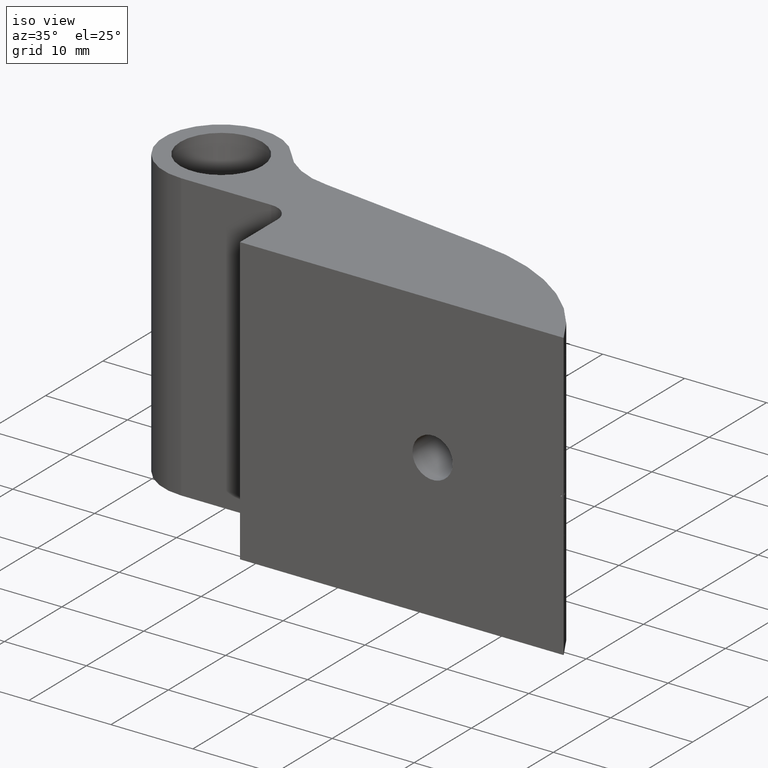
[diagram: clean part render]
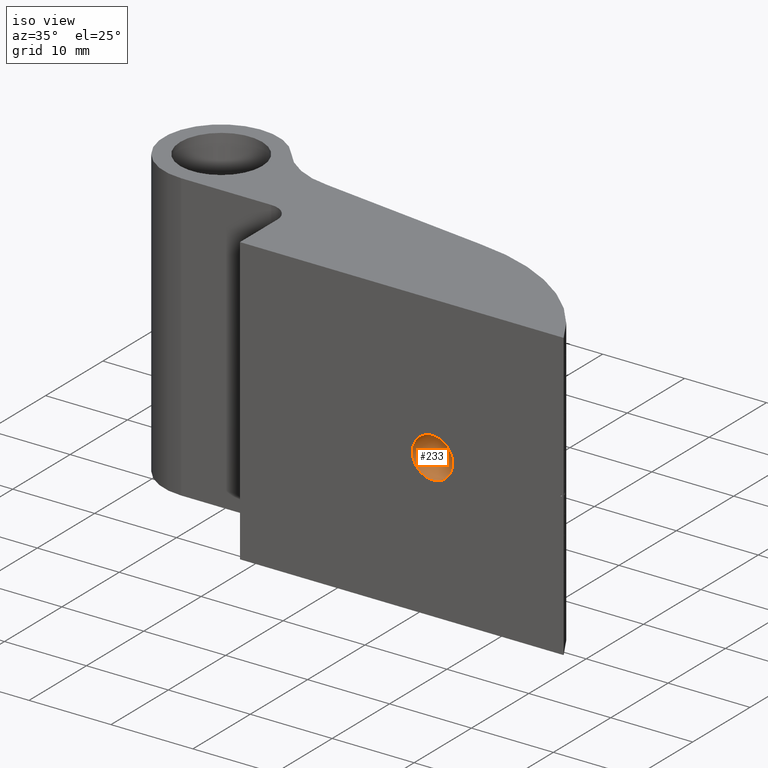
[diagram: same view with one face highlighted and labeled with its STEP entity id]
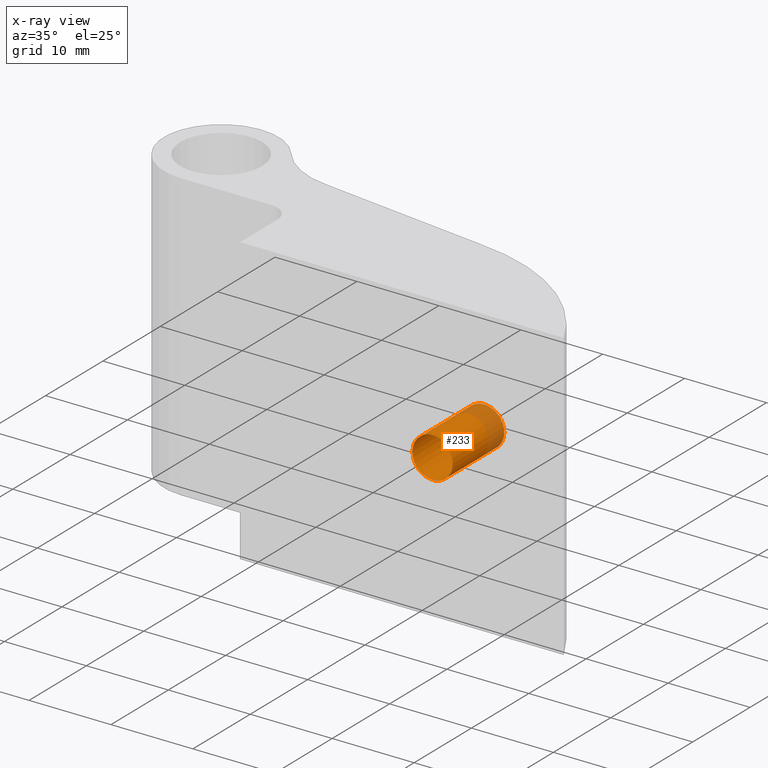
[diagram: x-ray of the same camera — body ghosted, the highlighted face saturated]
A machine part, iso view. The second image highlights one B-rep face of the part: STEP entity #233.
The next image is the same camera in x-ray: the body ghosted, the highlighted face saturated — about 21% of this face is hidden behind the body in this view.
In plain terms, the highlighted cylindrical surface (bore or boss wall) has radius 2.4585 mm, axis along (-0, -1, 0).
Its self-contained STEP definition (entity closure, byte-faithful):
#55=FACE_BOUND('',#93,.T.);
#63=CIRCLE('',#250,2.4585);
#64=CIRCLE('',#252,2.4585);
#77=FACE_OUTER_BOUND('',#92,.T.);
#92=EDGE_LOOP('',(#167));
#93=EDGE_LOOP('',(#168));
#114=VERTEX_POINT('',#394);
#115=VERTEX_POINT('',#397);
#136=EDGE_CURVE('',#114,#114,#63,.T.);
#137=EDGE_CURVE('',#115,#115,#64,.T.);
#167=ORIENTED_EDGE('',*,*,#137,.F.);
#168=ORIENTED_EDGE('',*,*,#136,.F.);
#225=CYLINDRICAL_SURFACE('',#251,2.4585);
#233=ADVANCED_FACE('',(#77,#55),#225,.F.);
#250=AXIS2_PLACEMENT_3D('',#395,#282,#283);
#251=AXIS2_PLACEMENT_3D('',#396,#284,#285);
#252=AXIS2_PLACEMENT_3D('',#398,#286,#287);
#282=DIRECTION('center_axis',(-1.0540092005935E-16,-1.,0.));
#283=DIRECTION('ref_axis',(1.,-1.0540092005935E-16,0.));
#284=DIRECTION('center_axis',(-1.0540092005935E-16,-1.,0.));
#285=DIRECTION('ref_axis',(1.,-1.0540092005935E-16,0.));
#286=DIRECTION('center_axis',(1.0540092005935E-16,1.,0.));
#287=DIRECTION('ref_axis',(1.,-1.0540092005935E-16,0.));
#394=CARTESIAN_POINT('',(5.4585,6.5,0.));
#395=CARTESIAN_POINT('Origin',(3.,6.5,0.));
#396=CARTESIAN_POINT('Origin',(3.,2.,0.));
#397=CARTESIAN_POINT('',(5.4585,-2.5,0.));
#398=CARTESIAN_POINT('Origin',(3.,-2.5,0.));